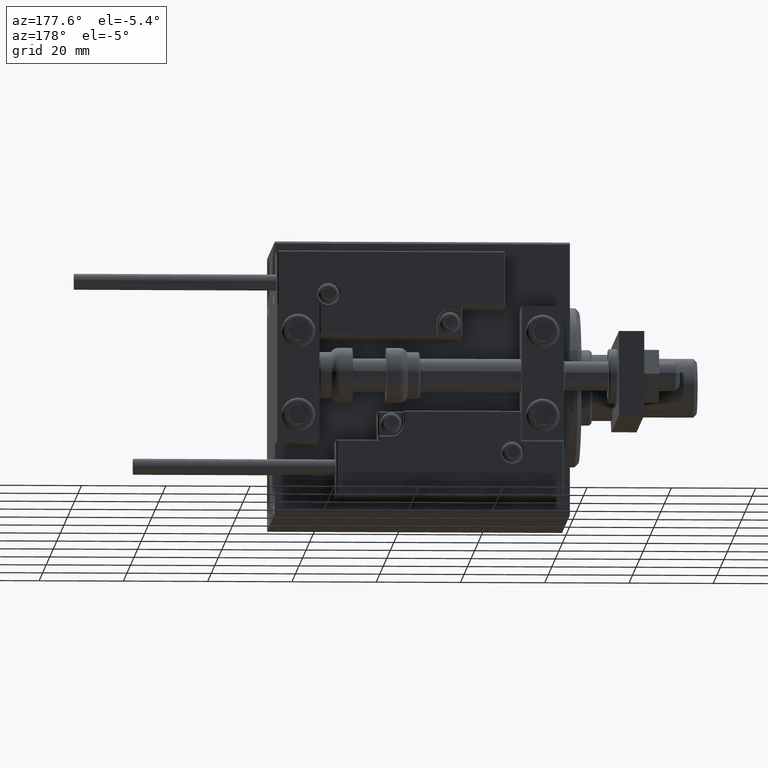
[diagram: clean part render]
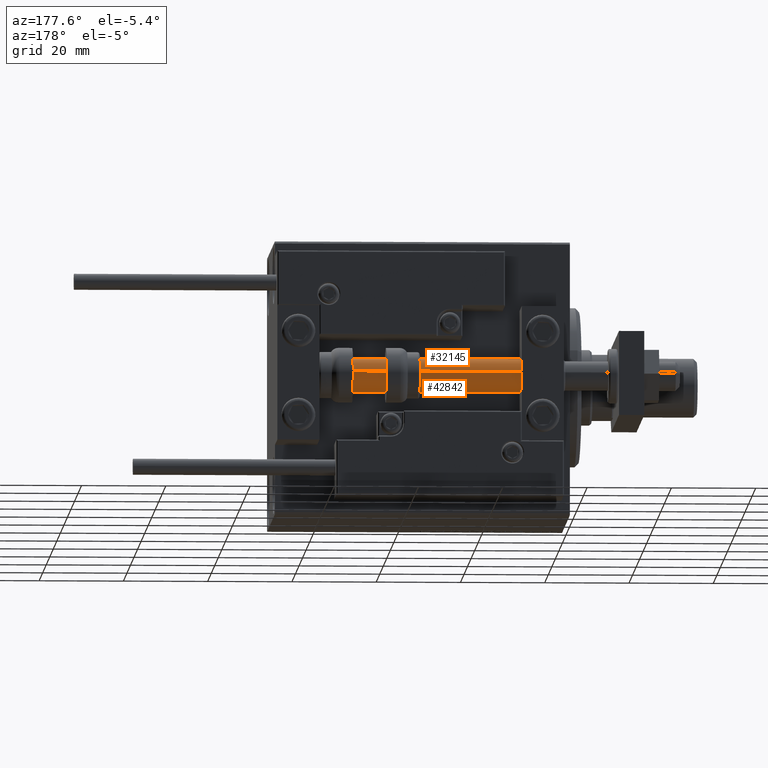
[diagram: same view with one multi-face feature highlighted, each face labeled with its STEP entity id]
A machine part, auxiliary view. The highlighted faces form ONE feature: a constant-radius fillet chain: 2 tangent blend faces with common blend radius 4 mm. The faces share edges in the B-rep.
Their STEP definitions:
[1] entity #42842 (Cylinder):
#948 = VECTOR ( 'NONE', #41860, 1000.000000000000000 ) ;
#5395 = EDGE_CURVE ( 'NONE', #9950, #37797, #23360, .T. ) ;
#7990 = ORIENTED_EDGE ( 'NONE', *, *, #5395, .F. ) ;
#8809 = CARTESIAN_POINT ( 'NONE',  ( 4.000000000000000000, 4.898587196589412829E-16, 2.000000000000029310 ) ) ;
#9950 = VERTEX_POINT ( 'NONE', #39639 ) ;
#12614 = DIRECTION ( 'NONE',  ( 1.000000000000000000, 0.000000000000000000, 0.000000000000000000 ) ) ;
#13340 = AXIS2_PLACEMENT_3D ( 'NONE', #31940, #35538, #47574 ) ;
#14628 = CARTESIAN_POINT ( 'NONE',  ( 4.000000000000000000, 4.898587196589412829E-16, 70.00000000000000000 ) ) ;
#14704 = VERTEX_POINT ( 'NONE', #23957 ) ;
#18707 = VECTOR ( 'NONE', #45939, 1000.000000000000000 ) ;
#19363 = FACE_OUTER_BOUND ( 'NONE', #22342, .T. ) ;
#20352 = CARTESIAN_POINT ( 'NONE',  ( -4.000000000000000000, 0.000000000000000000, 2.000000000000029310 ) ) ;
#20810 = DIRECTION ( 'NONE',  ( 0.000000000000000000, 0.000000000000000000, 1.000000000000000000 ) ) ;
#22342 = EDGE_LOOP ( 'NONE', ( #7990, #25384, #24688, #32781 ) ) ;
#23360 = LINE ( 'NONE', #14628, #18707 ) ;
#23957 = CARTESIAN_POINT ( 'NONE',  ( -4.000000000000000000, 0.000000000000000000, 70.00000000000000000 ) ) ;
#24688 = ORIENTED_EDGE ( 'NONE', *, *, #32487, .T. ) ;
#25384 = ORIENTED_EDGE ( 'NONE', *, *, #46891, .F. ) ;
#25679 = VERTEX_POINT ( 'NONE', #20352 ) ;
#26208 = LINE ( 'NONE', #50303, #948 ) ;
#30618 = AXIS2_PLACEMENT_3D ( 'NONE', #35243, #43701, #12614 ) ;
#31940 = CARTESIAN_POINT ( 'NONE',  ( 0.000000000000000000, 0.000000000000000000, 70.00000000000000000 ) ) ;
#32487 = EDGE_CURVE ( 'NONE', #14704, #25679, #26208, .T. ) ;
#32781 = ORIENTED_EDGE ( 'NONE', *, *, #35347, .T. ) ;
#33918 = AXIS2_PLACEMENT_3D ( 'NONE', #35709, #20810, #36463 ) ;
#35243 = CARTESIAN_POINT ( 'NONE',  ( 0.000000000000000000, 0.000000000000000000, 2.000000000000029310 ) ) ;
#35347 = EDGE_CURVE ( 'NONE', #25679, #37797, #37974, .T. ) ;
#35538 = DIRECTION ( 'NONE',  ( -0.000000000000000000, -0.000000000000000000, -1.000000000000000000 ) ) ;
#35709 = CARTESIAN_POINT ( 'NONE',  ( 0.000000000000000000, 0.000000000000000000, 70.00000000000000000 ) ) ;
#36463 = DIRECTION ( 'NONE',  ( 1.000000000000000000, 0.000000000000000000, 0.000000000000000000 ) ) ;
#37797 = VERTEX_POINT ( 'NONE', #8809 ) ;
#37974 = CIRCLE ( 'NONE', #30618, 4.000000000000000000 ) ;
#38824 = CIRCLE ( 'NONE', #33918, 4.000000000000000000 ) ;
#39639 = CARTESIAN_POINT ( 'NONE',  ( 4.000000000000000000, 4.898587196589412829E-16, 70.00000000000000000 ) ) ;
#41860 = DIRECTION ( 'NONE',  ( -0.000000000000000000, -0.000000000000000000, -1.000000000000000000 ) ) ;
#42842 = ADVANCED_FACE ( 'NONE', ( #19363 ), #43487, .T. ) ;
#43487 = CYLINDRICAL_SURFACE ( 'NONE', #13340, 4.000000000000000000 ) ;
#43701 = DIRECTION ( 'NONE',  ( -0.000000000000000000, -0.000000000000000000, 1.000000000000000000 ) ) ;
#45939 = DIRECTION ( 'NONE',  ( -0.000000000000000000, -0.000000000000000000, -1.000000000000000000 ) ) ;
#46891 = EDGE_CURVE ( 'NONE', #14704, #9950, #38824, .T. ) ;
#47574 = DIRECTION ( 'NONE',  ( -1.000000000000000000, 0.000000000000000000, 0.000000000000000000 ) ) ;
#50303 = CARTESIAN_POINT ( 'NONE',  ( -4.000000000000000000, 0.000000000000000000, 70.00000000000000000 ) ) ;
[2] entity #32145 (Cylinder):
#201 = FACE_OUTER_BOUND ( 'NONE', #41335, .T. ) ;
#948 = VECTOR ( 'NONE', #41860, 1000.000000000000000 ) ;
#4595 = ORIENTED_EDGE ( 'NONE', *, *, #19060, .T. ) ;
#5395 = EDGE_CURVE ( 'NONE', #9950, #37797, #23360, .T. ) ;
#7876 = CARTESIAN_POINT ( 'NONE',  ( 0.000000000000000000, 0.000000000000000000, 2.000000000000029310 ) ) ;
#8138 = DIRECTION ( 'NONE',  ( -0.000000000000000000, -0.000000000000000000, 1.000000000000000000 ) ) ;
#8809 = CARTESIAN_POINT ( 'NONE',  ( 4.000000000000000000, 4.898587196589412829E-16, 2.000000000000029310 ) ) ;
#9950 = VERTEX_POINT ( 'NONE', #39639 ) ;
#10566 = ORIENTED_EDGE ( 'NONE', *, *, #27145, .F. ) ;
#10805 = AXIS2_PLACEMENT_3D ( 'NONE', #11006, #22845, #42593 ) ;
#11006 = CARTESIAN_POINT ( 'NONE',  ( 0.000000000000000000, 0.000000000000000000, 70.00000000000000000 ) ) ;
#14628 = CARTESIAN_POINT ( 'NONE',  ( 4.000000000000000000, 4.898587196589412829E-16, 70.00000000000000000 ) ) ;
#14704 = VERTEX_POINT ( 'NONE', #23957 ) ;
#18707 = VECTOR ( 'NONE', #45939, 1000.000000000000000 ) ;
#18730 = ORIENTED_EDGE ( 'NONE', *, *, #5395, .T. ) ;
#18984 = CYLINDRICAL_SURFACE ( 'NONE', #10805, 4.000000000000000000 ) ;
#19060 = EDGE_CURVE ( 'NONE', #37797, #25679, #40018, .T. ) ;
#19963 = DIRECTION ( 'NONE',  ( 1.000000000000000000, 0.000000000000000000, 0.000000000000000000 ) ) ;
#20352 = CARTESIAN_POINT ( 'NONE',  ( -4.000000000000000000, 0.000000000000000000, 2.000000000000029310 ) ) ;
#22137 = DIRECTION ( 'NONE',  ( 0.000000000000000000, 0.000000000000000000, 1.000000000000000000 ) ) ;
#22845 = DIRECTION ( 'NONE',  ( -0.000000000000000000, -0.000000000000000000, -1.000000000000000000 ) ) ;
#23360 = LINE ( 'NONE', #14628, #18707 ) ;
#23957 = CARTESIAN_POINT ( 'NONE',  ( -4.000000000000000000, 0.000000000000000000, 70.00000000000000000 ) ) ;
#24602 = ORIENTED_EDGE ( 'NONE', *, *, #32487, .F. ) ;
#25679 = VERTEX_POINT ( 'NONE', #20352 ) ;
#25729 = DIRECTION ( 'NONE',  ( 1.000000000000000000, 0.000000000000000000, 0.000000000000000000 ) ) ;
#26208 = LINE ( 'NONE', #50303, #948 ) ;
#27145 = EDGE_CURVE ( 'NONE', #9950, #14704, #46000, .T. ) ;
#30148 = AXIS2_PLACEMENT_3D ( 'NONE', #7876, #8138, #19963 ) ;
#31241 = AXIS2_PLACEMENT_3D ( 'NONE', #45220, #22137, #25729 ) ;
#32145 = ADVANCED_FACE ( 'NONE', ( #201 ), #18984, .T. ) ;
#32487 = EDGE_CURVE ( 'NONE', #14704, #25679, #26208, .T. ) ;
#37797 = VERTEX_POINT ( 'NONE', #8809 ) ;
#39639 = CARTESIAN_POINT ( 'NONE',  ( 4.000000000000000000, 4.898587196589412829E-16, 70.00000000000000000 ) ) ;
#40018 = CIRCLE ( 'NONE', #30148, 4.000000000000000000 ) ;
#41335 = EDGE_LOOP ( 'NONE', ( #10566, #18730, #4595, #24602 ) ) ;
#41860 = DIRECTION ( 'NONE',  ( -0.000000000000000000, -0.000000000000000000, -1.000000000000000000 ) ) ;
#42593 = DIRECTION ( 'NONE',  ( -1.000000000000000000, 0.000000000000000000, 0.000000000000000000 ) ) ;
#45220 = CARTESIAN_POINT ( 'NONE',  ( 0.000000000000000000, 0.000000000000000000, 70.00000000000000000 ) ) ;
#45939 = DIRECTION ( 'NONE',  ( -0.000000000000000000, -0.000000000000000000, -1.000000000000000000 ) ) ;
#46000 = CIRCLE ( 'NONE', #31241, 4.000000000000000000 ) ;
#50303 = CARTESIAN_POINT ( 'NONE',  ( -4.000000000000000000, 0.000000000000000000, 70.00000000000000000 ) ) ;